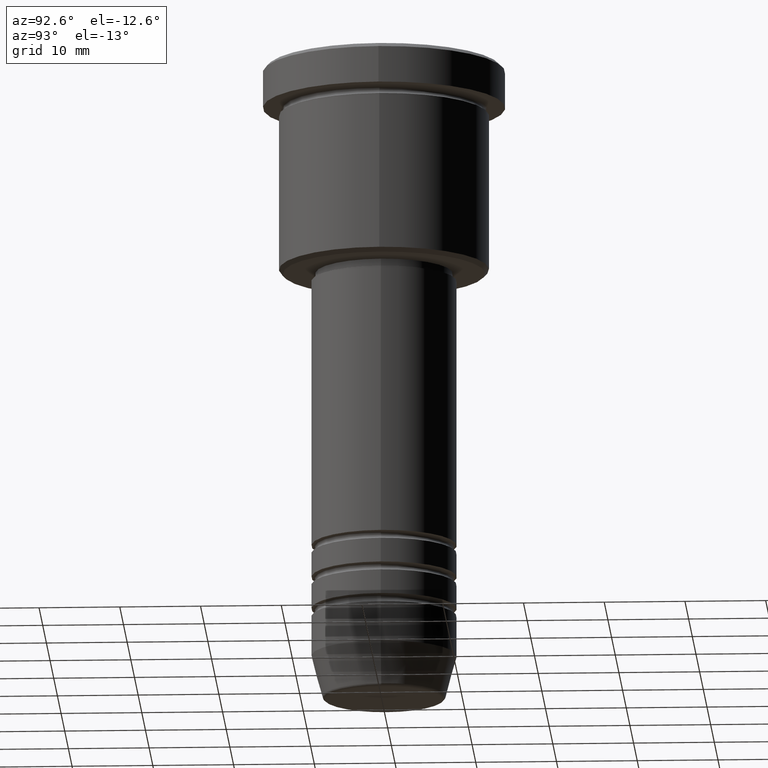
[diagram: clean part render]
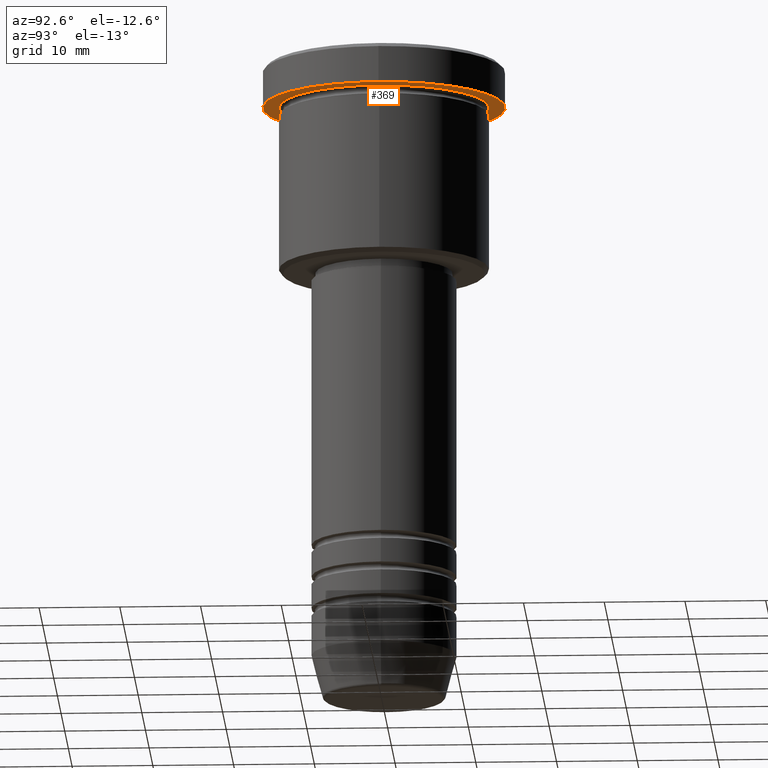
[diagram: same view with one face highlighted and labeled with its STEP entity id]
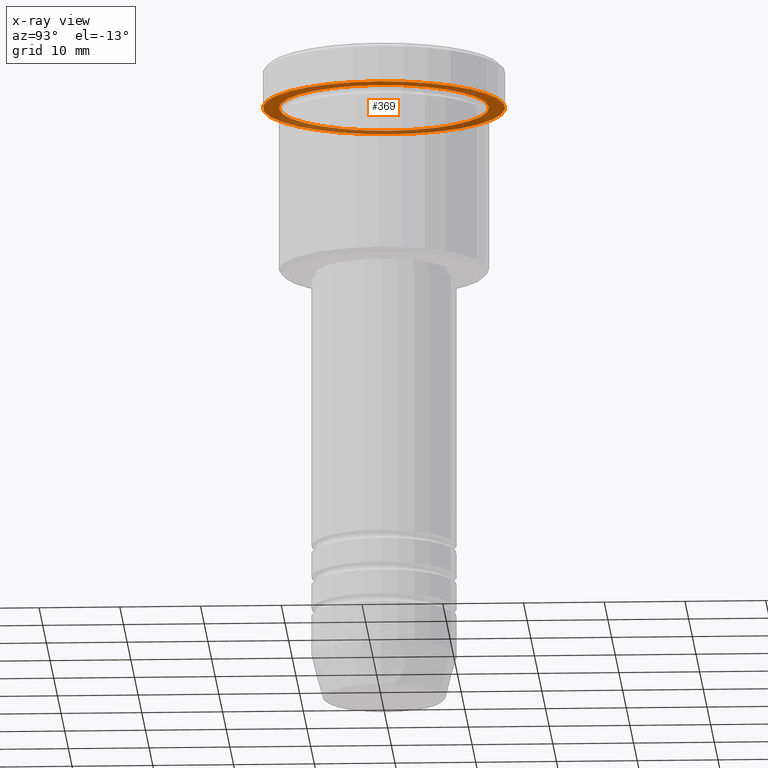
[diagram: x-ray of the same camera — body ghosted, the highlighted face saturated]
A machine part, auxiliary view. The second image highlights one B-rep face of the part: STEP entity #369.
The next image is the same camera in x-ray: the body ghosted, the highlighted face saturated — about 36% of this face is hidden behind the body in this view.
In plain terms, the highlighted planar face has unit normal (0, 0, -1).
Its self-contained STEP definition (entity closure, byte-faithful):
#85 = AXIS2_PLACEMENT_3D ( 'NONE', #781, #151, #709 ) ;
#111 = VERTEX_POINT ( 'NONE', #477 ) ;
#151 = DIRECTION ( 'NONE',  ( -0.000000000000000000, -0.000000000000000000, 1.000000000000000000 ) ) ;
#157 = CIRCLE ( 'NONE', #1029, 13.00000000000000000 ) ;
#200 = ORIENTED_EDGE ( 'NONE', *, *, #963, .F. ) ;
#208 = EDGE_CURVE ( 'NONE', #111, #1178, #451, .T. ) ;
#218 = EDGE_CURVE ( 'NONE', #475, #679, #794, .T. ) ;
#274 = FACE_OUTER_BOUND ( 'NONE', #425, .T. ) ;
#321 = DIRECTION ( 'NONE',  ( 1.000000000000000000, 0.000000000000000000, 0.000000000000000000 ) ) ;
#330 = EDGE_LOOP ( 'NONE', ( #747, #883 ) ) ;
#345 = DIRECTION ( 'NONE',  ( 0.000000000000000000, 0.000000000000000000, -1.000000000000000000 ) ) ;
#369 = ADVANCED_FACE ( 'NONE', ( #1008, #274 ), #645, .T. ) ;
#421 = CARTESIAN_POINT ( 'NONE',  ( 0.000000000000000000, 0.000000000000000000, -4.999999999999999112 ) ) ;
#425 = EDGE_LOOP ( 'NONE', ( #200, #612 ) ) ;
#451 = CIRCLE ( 'NONE', #1123, 15.00000000000000000 ) ;
#475 = VERTEX_POINT ( 'NONE', #1176 ) ;
#477 = CARTESIAN_POINT ( 'NONE',  ( -15.00000000000000000, 1.836970198721029589E-15, -4.999999999999999112 ) ) ;
#499 = CARTESIAN_POINT ( 'NONE',  ( 13.00000000000000000, 1.592040838891559095E-15, -4.999999999999999112 ) ) ;
#507 = CARTESIAN_POINT ( 'NONE',  ( 0.000000000000000000, 0.000000000000000000, -4.999999999999999112 ) ) ;
#612 = ORIENTED_EDGE ( 'NONE', *, *, #208, .F. ) ;
#640 = EDGE_CURVE ( 'NONE', #679, #475, #157, .T. ) ;
#645 = PLANE ( 'NONE',  #835 ) ;
#679 = VERTEX_POINT ( 'NONE', #499 ) ;
#709 = DIRECTION ( 'NONE',  ( -1.000000000000000000, 0.000000000000000000, 0.000000000000000000 ) ) ;
#747 = ORIENTED_EDGE ( 'NONE', *, *, #218, .T. ) ;
#781 = CARTESIAN_POINT ( 'NONE',  ( 0.000000000000000000, 0.000000000000000000, -4.999999999999999112 ) ) ;
#791 = DIRECTION ( 'NONE',  ( 1.000000000000000000, 0.000000000000000000, 0.000000000000000000 ) ) ;
#794 = CIRCLE ( 'NONE', #85, 13.00000000000000000 ) ;
#800 = DIRECTION ( 'NONE',  ( -0.000000000000000000, -0.000000000000000000, 1.000000000000000000 ) ) ;
#807 = DIRECTION ( 'NONE',  ( -1.000000000000000000, 0.000000000000000000, -0.000000000000000000 ) ) ;
#831 = CARTESIAN_POINT ( 'NONE',  ( 0.000000000000000000, 0.000000000000000000, -4.999999999999999112 ) ) ;
#835 = AXIS2_PLACEMENT_3D ( 'NONE', #917, #345, #807 ) ;
#883 = ORIENTED_EDGE ( 'NONE', *, *, #640, .T. ) ;
#917 = CARTESIAN_POINT ( 'NONE',  ( 0.000000000000000000, 15.00000000000000000, -4.999999999999999112 ) ) ;
#963 = EDGE_CURVE ( 'NONE', #1178, #111, #1175, .T. ) ;
#996 = DIRECTION ( 'NONE',  ( -0.000000000000000000, -0.000000000000000000, 1.000000000000000000 ) ) ;
#1008 = FACE_BOUND ( 'NONE', #330, .T. ) ;
#1009 = DIRECTION ( 'NONE',  ( -1.000000000000000000, 0.000000000000000000, 0.000000000000000000 ) ) ;
#1016 = AXIS2_PLACEMENT_3D ( 'NONE', #507, #1144, #321 ) ;
#1029 = AXIS2_PLACEMENT_3D ( 'NONE', #831, #996, #1009 ) ;
#1064 = CARTESIAN_POINT ( 'NONE',  ( 15.00000000000000000, 0.000000000000000000, -4.999999999999999112 ) ) ;
#1123 = AXIS2_PLACEMENT_3D ( 'NONE', #421, #800, #791 ) ;
#1144 = DIRECTION ( 'NONE',  ( -0.000000000000000000, -0.000000000000000000, 1.000000000000000000 ) ) ;
#1175 = CIRCLE ( 'NONE', #1016, 15.00000000000000000 ) ;
#1176 = CARTESIAN_POINT ( 'NONE',  ( -13.00000000000000000, 0.000000000000000000, -4.999999999999999112 ) ) ;
#1178 = VERTEX_POINT ( 'NONE', #1064 ) ;